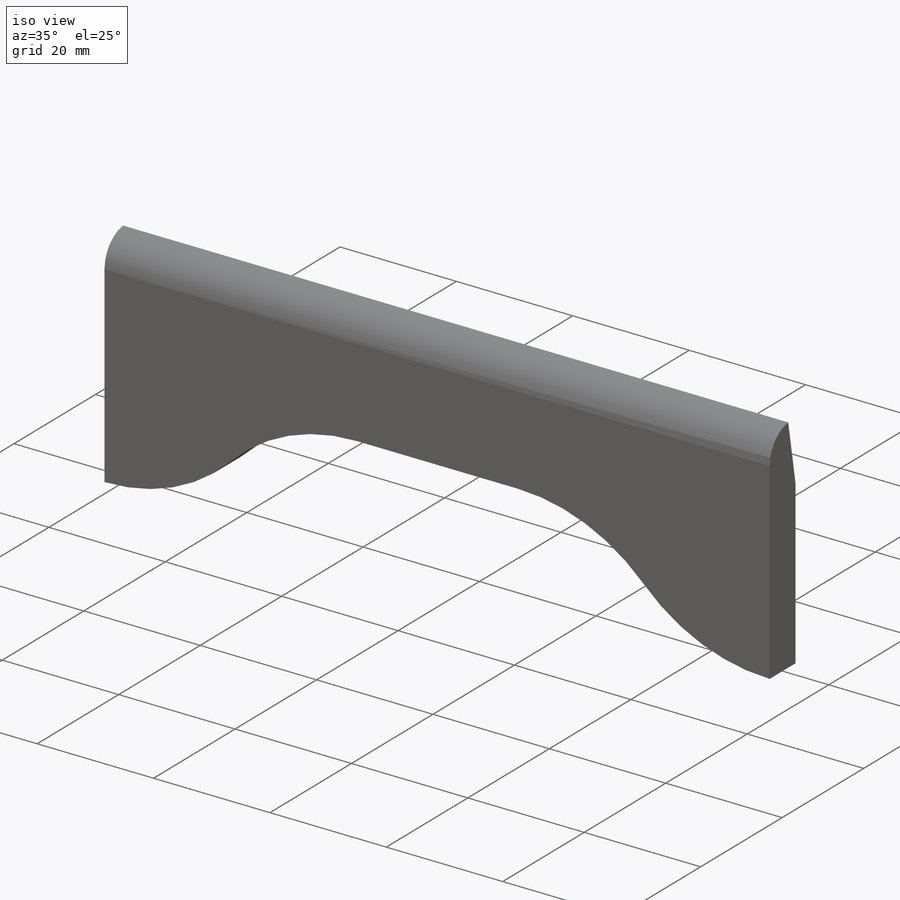
[diagram: iso view]
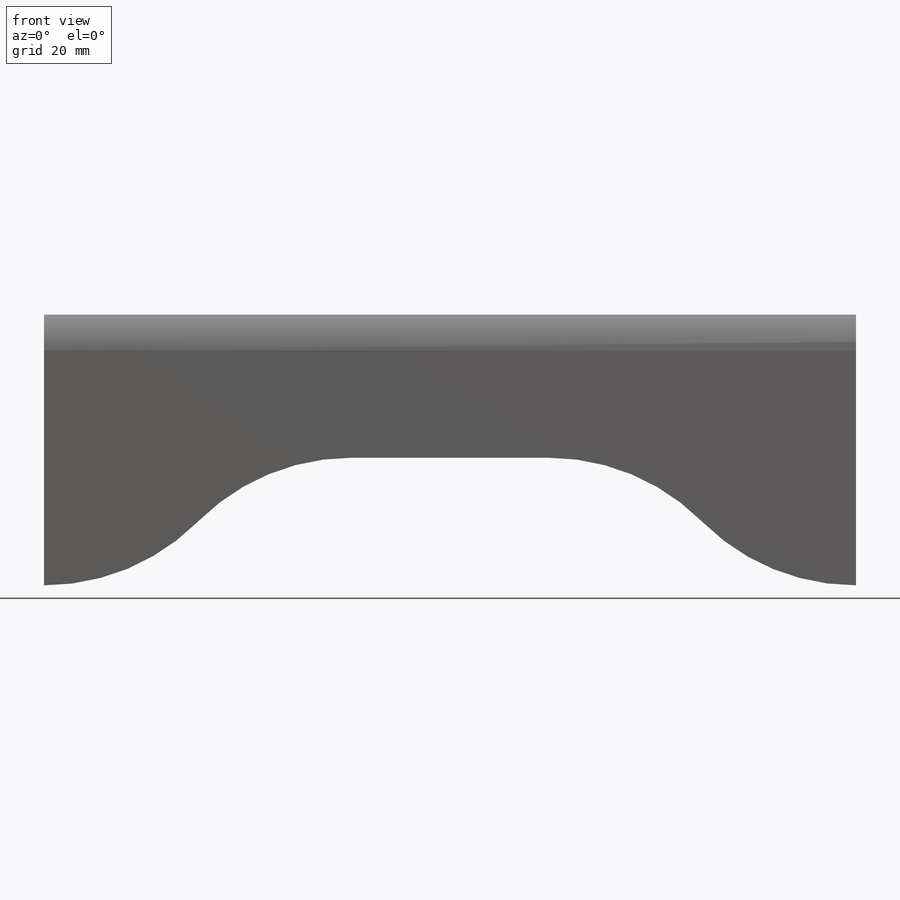
[diagram: front view]
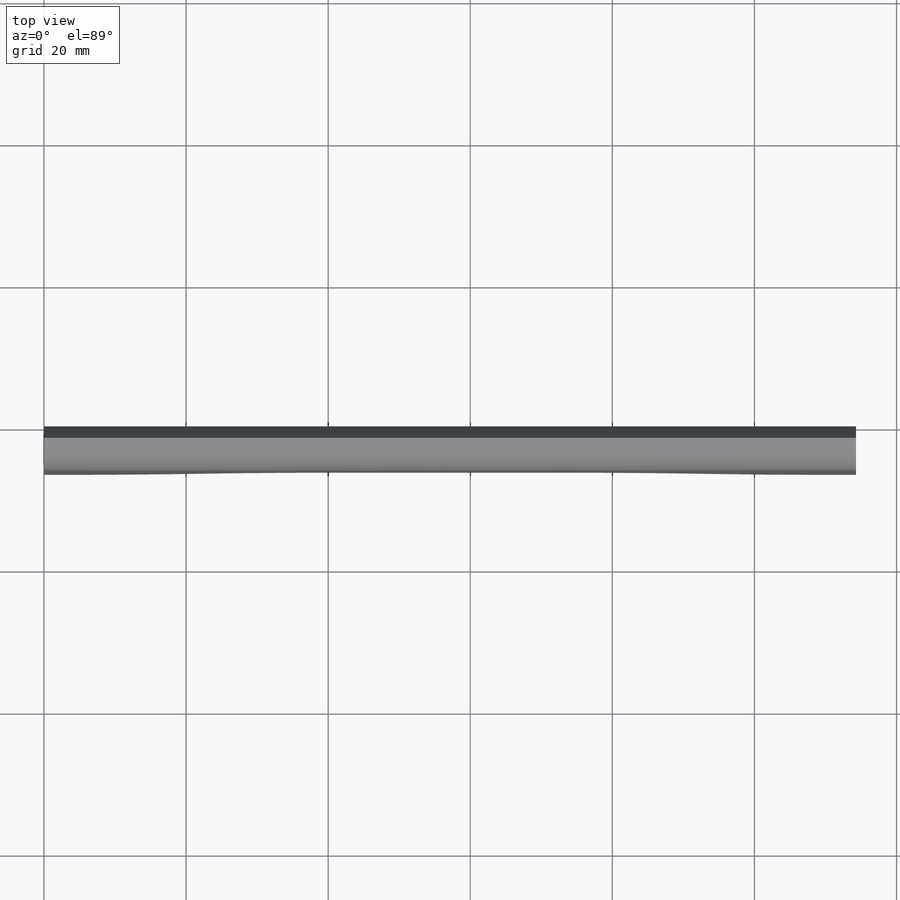
[diagram: top view]
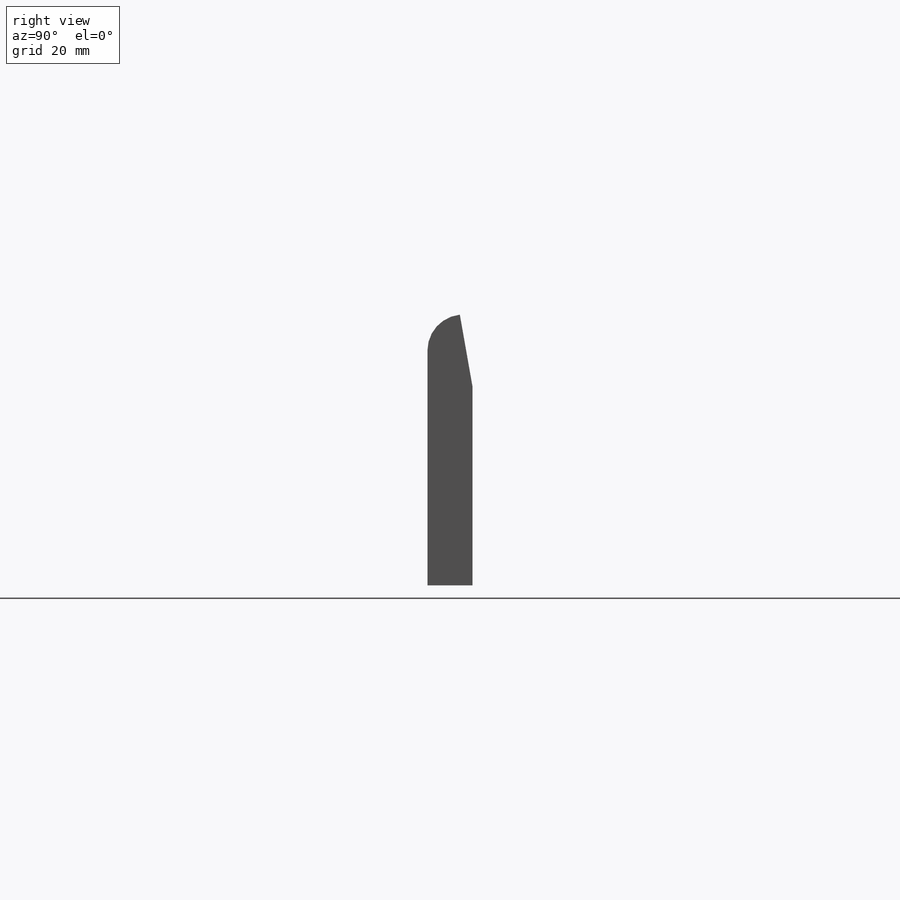
[diagram: right view]
SOLIDWORKS PART (.sldprt)
format: sldprt  version: not decoded by parser v0  size: 186,368 bytes
history: native  units: mm
features: fillet x4, sketch x3, material x1, extrude x1, chamfer x1, cut_extrude x1 (+11 scaffold rows collapsed)
feature tree (22):
  scaffold x11  (default folders/planes/origin — collapsed)
  material  "Material <not specified>"
  sketch  "Sketch1"  dims[D1=38.1mm D2=114.3mm]
  extrude  "Boss-Extrude1"  Depth=6.35mm
  chamfer  "Chamfer1"  Distance=10.16mm Angle=10deg
  sketch  "Sketch3"  dims[c1.D1=12.7mm c1.D2=12.7mm c1.D3=35.0deg c2.D3=~36.240642mm c3.D3=45.0deg c3.D4=~31.283574mm c4.D4=45.0deg c5.D4=25.4mm c5.D5=25.4mm]
  cut_extrude  "Cut-Extrude3"  Depth=21.082mm
  fillet  "Fillet1"  Radius=30.48mm
  fillet  "Fillet2"  Radius=30.48mm
  fillet  "Fillet3"  Radius=30.48mm
  sketch  "Sketch5"
  fillet  "Fillet4"  Radius=5.08mm
decode coverage: 9 of 10 modeling features carry decoded parameters
note: ~ marks probable driven/reference dimensions
note: suppression state not decoded; provenance and decode notes live in map.json
